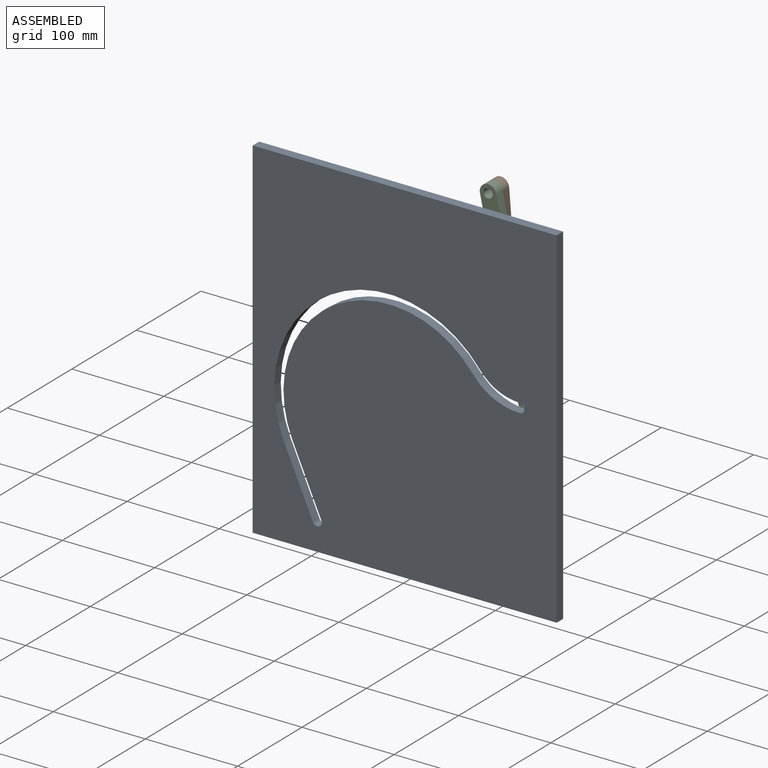
[diagram: assembled view]
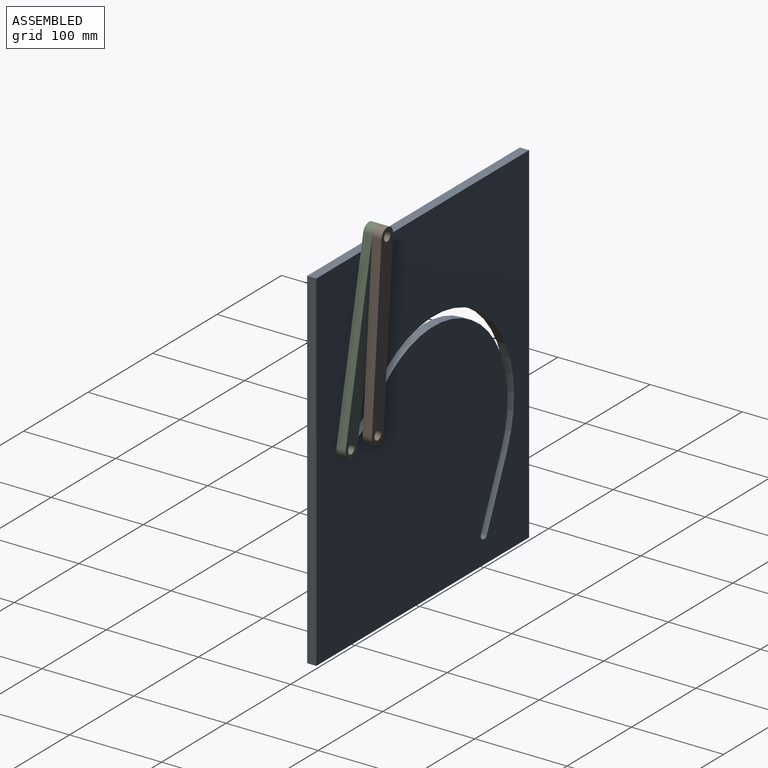
[diagram: assembled view, second angle]
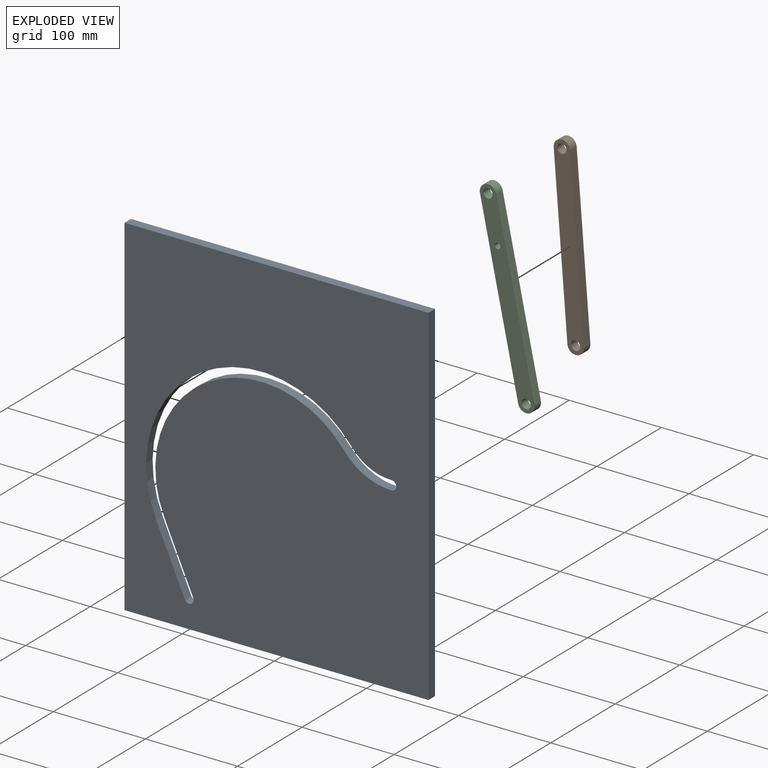
[diagram: exploded view]
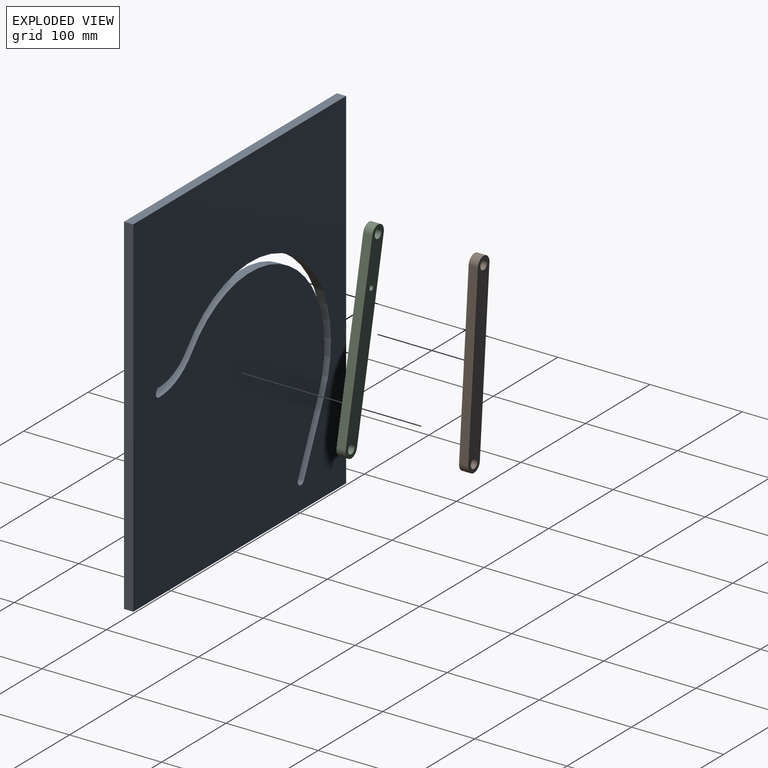
[diagram: exploded view, second angle]
ASSEMBLY  parts=3 mates=4
PART A: 14 faces, bbox 330x10x380 mm
  f0: cylinder r=5mm len=10mm, axis (0,1,0), area 157.1mm2, adj f1,f11,f12,f13
  f1: cylinder r=65mm len=51.12mm, axis (0,1,0), area 588.3mm2, adj f0,f2,f12,f13
  f2: cylinder r=115mm len=205.45mm, axis (0,1,0), area 3329.2mm2, adj f1,f3,f12,f13
  f3: plane 70x31.18mm, normal (-0.91,0,-0.41), area 766.3mm2, adj f2,f4,f12,f13
  f4: cylinder r=5mm len=10mm, axis (0,1,0), area 157.1mm2, adj f3,f5,f12,f13
  f5: plane 70x31.18mm, normal (0.91,0,0.41), area 766.3mm2, adj f4,f6,f12,f13
  f6: cylinder r=125mm len=223.31mm, axis (0,1,0), area 3618.7mm2, adj f5,f11,f12,f13
  f7: plane 380x10mm, normal (-1,0,0), area 3800mm2, adj f8,f10,f12,f13
  f8: plane 330x10mm, normal (0,0,-1), area 3300mm2, adj f7,f9,f12,f13
  f9: plane 380x10mm, normal (1,0,0), area 3800mm2, adj f8,f10,f12,f13
  f10: plane 330x10mm, normal (0,0,1), area 3300mm2, adj f7,f9,f12,f13
  f11: cylinder r=55mm len=43.26mm, axis (0,1,0), area 497.8mm2, adj f0,f6,f12,f13
  f12: plane 380x330mm, normal (0,-1,0), area 120538.1mm2, adj f0,f1,f2,f3,f4,f5,f6,f7
  f13: plane 380x330mm, normal (0,1,0), area 120538.1mm2, adj f0,f1,f2,f3,f4,f5,f6,f7
PART B: 8 faces, bbox 18x10x208 mm
  f0: plane 190x10mm, normal (1,0,0), area 1900mm2, adj f1,f4,f6,f7
  f1: cylinder r=9mm len=18mm, axis (0,1,0), area 282.7mm2, adj f0,f2,f6,f7
  f2: plane 190x10mm, normal (-1,0,0), area 1900mm2, adj f1,f4,f6,f7
  f3: cylinder r=5mm len=10mm, axis (0,1,0), area 314.2mm2, adj f6,f7
  f4: cylinder r=9mm len=18mm, axis (0,1,0), area 282.7mm2, adj f0,f2,f6,f7
  f5: cylinder r=5mm len=10mm, axis (0,1,0), area 314.2mm2, adj f6,f7
  f6: plane 208x18mm, normal (0,-1,0), area 3517.4mm2, adj f0,f1,f2,f3,f4,f5
  f7: plane 208x18mm, normal (0,1,0), area 3517.4mm2, adj f0,f1,f2,f3,f4,f5
PART C: 9 faces, bbox 18x10x218 mm
  f0: plane 200x10mm, normal (1,0,0), area 2000mm2, adj f1,f4,f6,f7
  f1: cylinder r=9mm len=18mm, axis (0,1,0), area 282.7mm2, adj f0,f2,f6,f7
  f2: plane 200x10mm, normal (-1,0,0), area 2000mm2, adj f1,f4,f6,f7
  f3: cylinder r=5mm len=10mm, axis (0,1,0), area 314.2mm2, adj f6,f7
  f4: cylinder r=9mm len=18mm, axis (0,1,0), area 282.7mm2, adj f0,f2,f6,f7
  f5: cylinder r=5mm len=10mm, axis (0,1,0), area 314.2mm2, adj f6,f7
  f6: plane 218x18mm, normal (0,-1,0), area 3669.1mm2, adj f0,f1,f2,f3,f4,f5,f8
  f7: plane 218x18mm, normal (0,1,0), area 3669.1mm2, adj f0,f1,f2,f3,f4,f5,f8
  f8: cylinder r=3mm len=10mm, axis (0,-1,0), area 188.5mm2, adj f6,f7
PLACE A t=(129.03,6.27,44.14)mm fixed
PLACE B rot(axis=(0,-1,0),4.5deg) t=(102.41,26.27,50.37)mm
PLACE C rot(axis=(0,1,0),168deg) t=(87.53,16.27,239.79)mm
MATE cylindrical C.f1 <-> A.f0  axis (0,1,0) through (129.03,11.27,44.14)mm
MATE cylindrical B.f1 <-> C.f3  axis (0,-1,0) through (87.53,16.27,239.79)mm
MATE planar A.f13 <-> C.f6  axis (0,1,0) through (5.98,6.27,34.06)mm
MATE planar B.f6 <-> C.f7  axis (0,-1,0) through (94.97,16.27,145.08)mm
